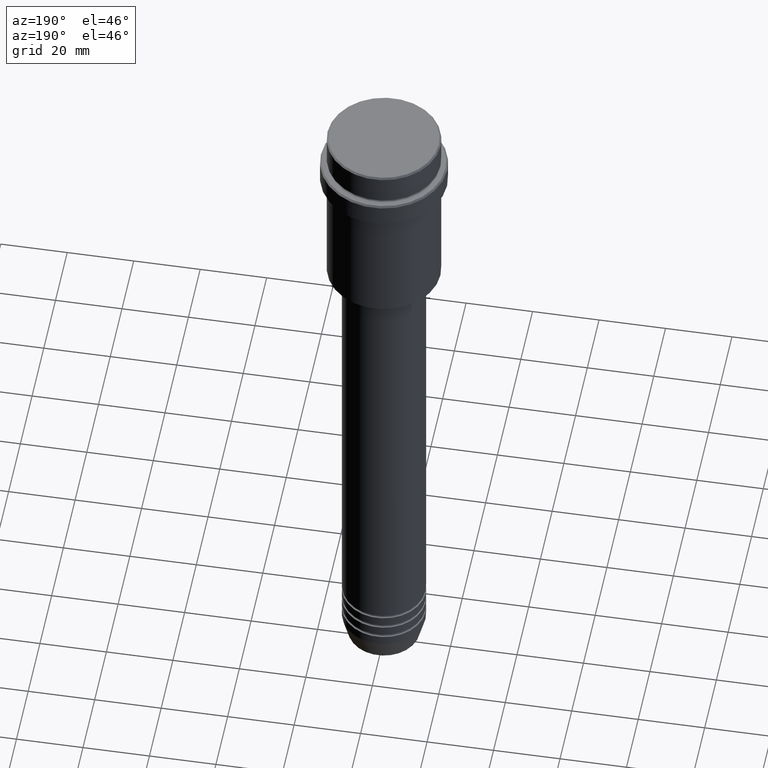
[diagram: clean part render]
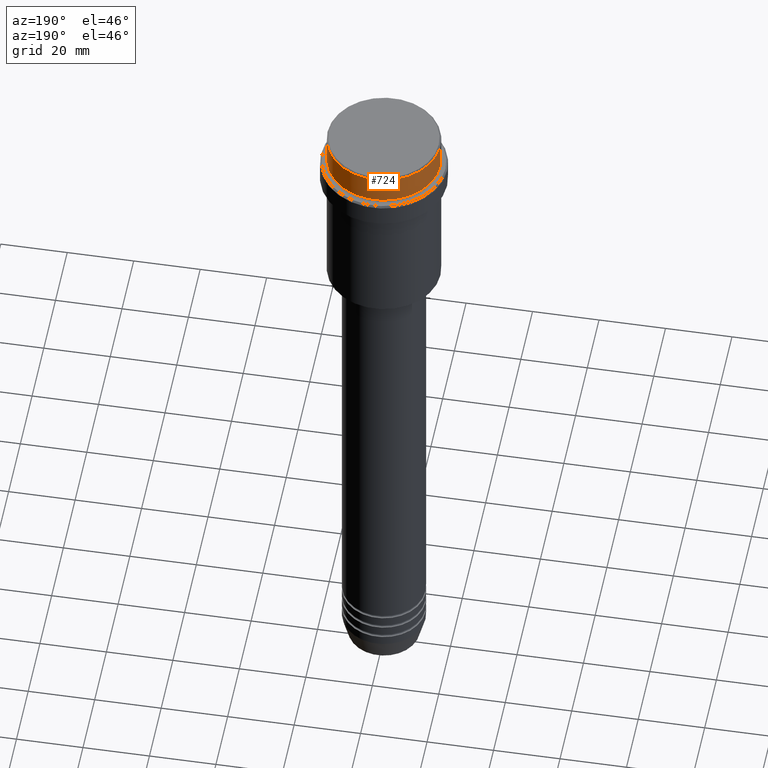
[diagram: same view with one face highlighted and labeled with its STEP entity id]
A machine part, auxiliary view. The second image highlights one B-rep face of the part: STEP entity #724.
In plain terms, the highlighted cylindrical surface (partial cylindrical patch) has radius 17 mm, axis along (-0, -0, 1).
Its self-contained STEP definition (entity closure, byte-faithful):
#18 = DIRECTION ( 'NONE',  ( -0.000000000000000000, -0.000000000000000000, 1.000000000000000000 ) ) ;
#27 = CARTESIAN_POINT ( 'NONE',  ( 16.99999999999998579, 0.000000000000000000, 0.000000000000000000 ) ) ;
#31 = EDGE_CURVE ( 'NONE', #623, #892, #1353, .T. ) ;
#36 = DIRECTION ( 'NONE',  ( 1.000000000000000000, 0.000000000000000000, 0.000000000000000000 ) ) ;
#47 = AXIS2_PLACEMENT_3D ( 'NONE', #682, #1131, #36 ) ;
#100 = ORIENTED_EDGE ( 'NONE', *, *, #31, .T. ) ;
#101 = CARTESIAN_POINT ( 'NONE',  ( 0.000000000000000000, 0.000000000000000000, 0.000000000000000000 ) ) ;
#115 = AXIS2_PLACEMENT_3D ( 'NONE', #1053, #1046, #1272 ) ;
#127 = LINE ( 'NONE', #27, #796 ) ;
#160 = CIRCLE ( 'NONE', #47, 16.99999999999998579 ) ;
#213 = EDGE_LOOP ( 'NONE', ( #100, #1146, #959, #1090 ) ) ;
#243 = CARTESIAN_POINT ( 'NONE',  ( -16.99999999999998579, 2.081899558550499096E-15, 0.000000000000000000 ) ) ;
#370 = LINE ( 'NONE', #243, #798 ) ;
#417 = FACE_OUTER_BOUND ( 'NONE', #213, .T. ) ;
#533 = DIRECTION ( 'NONE',  ( 1.000000000000000000, 0.000000000000000000, 0.000000000000000000 ) ) ;
#623 = VERTEX_POINT ( 'NONE', #725 ) ;
#682 = CARTESIAN_POINT ( 'NONE',  ( 0.000000000000000000, 0.000000000000000000, -0.5000000000000108802 ) ) ;
#724 = ADVANCED_FACE ( 'NONE', ( #417 ), #1086, .T. ) ;
#725 = CARTESIAN_POINT ( 'NONE',  ( 16.99999999999997513, 0.000000000000000000, -8.999999999999998224 ) ) ;
#789 = VERTEX_POINT ( 'NONE', #1232 ) ;
#796 = VECTOR ( 'NONE', #18, 1000.000000000000000 ) ;
#798 = VECTOR ( 'NONE', #1252, 1000.000000000000000 ) ;
#885 = EDGE_CURVE ( 'NONE', #789, #954, #160, .T. ) ;
#892 = VERTEX_POINT ( 'NONE', #1382 ) ;
#954 = VERTEX_POINT ( 'NONE', #1074 ) ;
#959 = ORIENTED_EDGE ( 'NONE', *, *, #885, .T. ) ;
#963 = AXIS2_PLACEMENT_3D ( 'NONE', #101, #1295, #533 ) ;
#1046 = DIRECTION ( 'NONE',  ( -0.000000000000000000, -0.000000000000000000, 1.000000000000000000 ) ) ;
#1053 = CARTESIAN_POINT ( 'NONE',  ( 0.000000000000000000, 0.000000000000000000, -8.999999999999998224 ) ) ;
#1074 = CARTESIAN_POINT ( 'NONE',  ( 16.99999999999998579, 0.000000000000000000, -0.5000000000000108802 ) ) ;
#1086 = CYLINDRICAL_SURFACE ( 'NONE', #963, 16.99999999999998579 ) ;
#1090 = ORIENTED_EDGE ( 'NONE', *, *, #1155, .F. ) ;
#1131 = DIRECTION ( 'NONE',  ( 0.000000000000000000, 0.000000000000000000, -1.000000000000000000 ) ) ;
#1146 = ORIENTED_EDGE ( 'NONE', *, *, #1275, .T. ) ;
#1155 = EDGE_CURVE ( 'NONE', #623, #954, #127, .T. ) ;
#1232 = CARTESIAN_POINT ( 'NONE',  ( -16.99999999999998579, 2.081899558550499096E-15, -0.5000000000000108802 ) ) ;
#1252 = DIRECTION ( 'NONE',  ( -0.000000000000000000, -0.000000000000000000, 1.000000000000000000 ) ) ;
#1272 = DIRECTION ( 'NONE',  ( 1.000000000000000000, 0.000000000000000000, 0.000000000000000000 ) ) ;
#1275 = EDGE_CURVE ( 'NONE', #892, #789, #370, .T. ) ;
#1295 = DIRECTION ( 'NONE',  ( -0.000000000000000000, -0.000000000000000000, 1.000000000000000000 ) ) ;
#1353 = CIRCLE ( 'NONE', #115, 16.99999999999997513 ) ;
#1382 = CARTESIAN_POINT ( 'NONE',  ( -16.99999999999997513, 2.081899558550498307E-15, -8.999999999999998224 ) ) ;